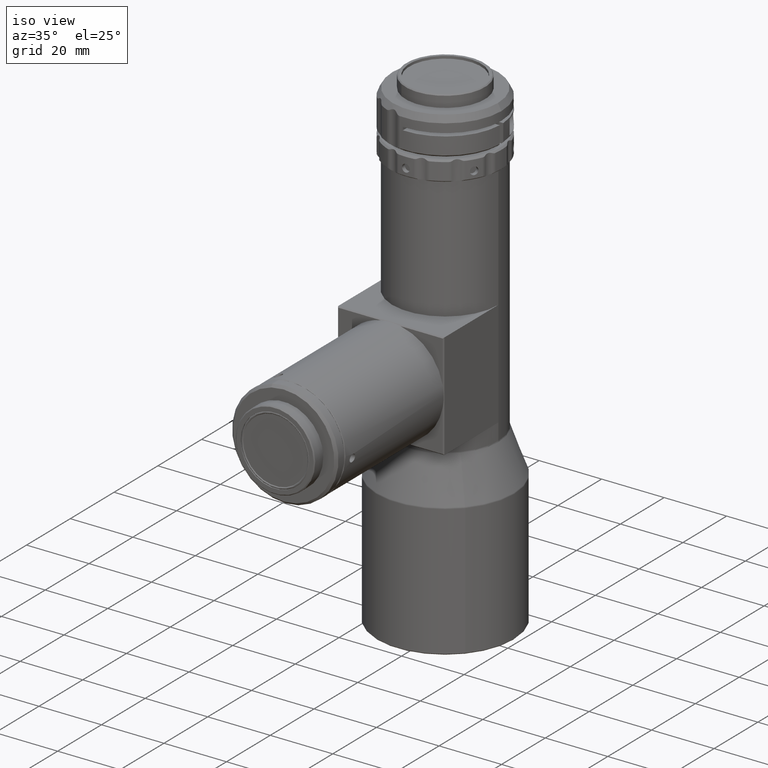
[diagram: clean part render]
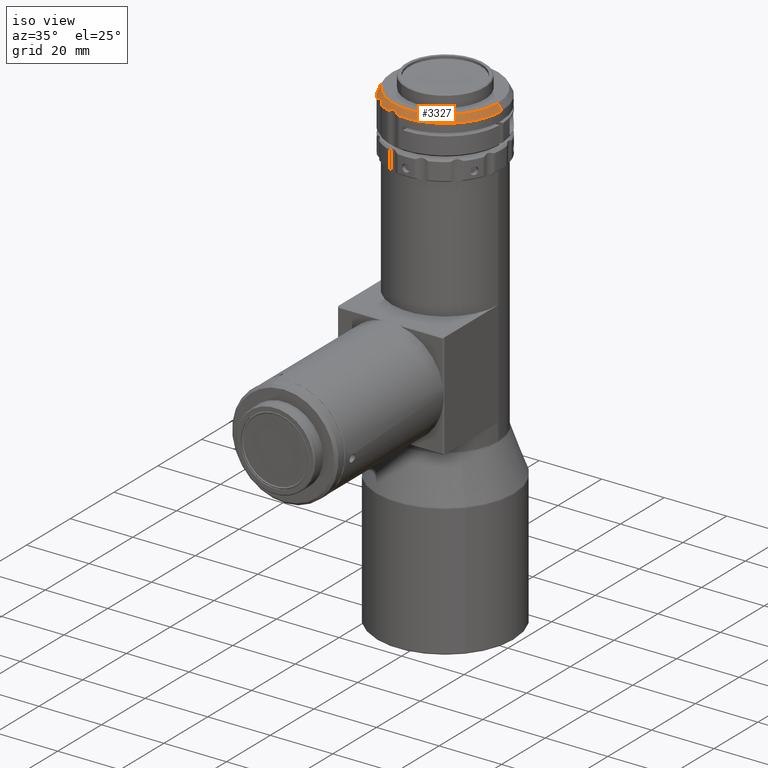
[diagram: same view with one face highlighted and labeled with its STEP entity id]
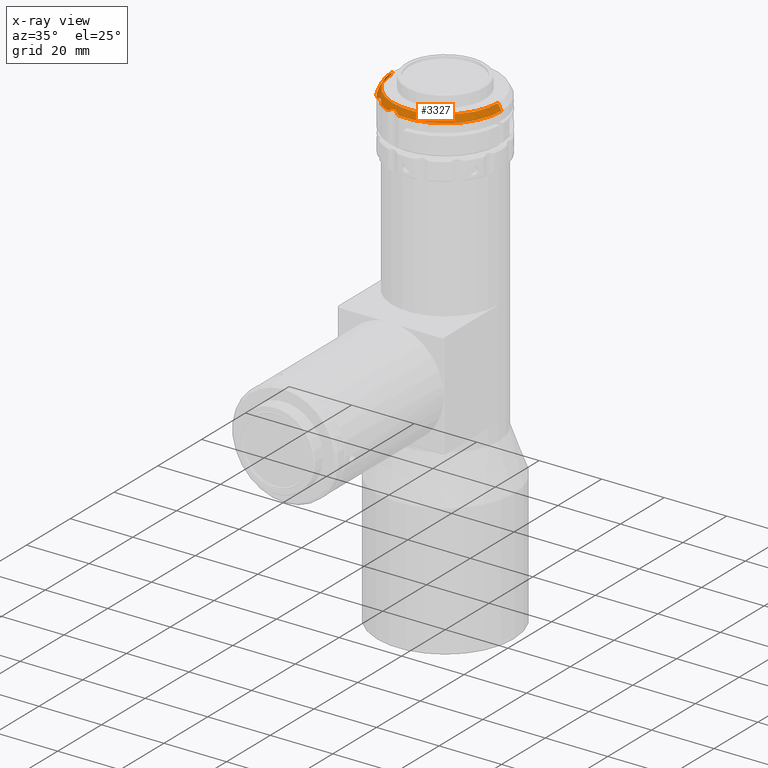
[diagram: x-ray of the same camera — body ghosted, the highlighted face saturated]
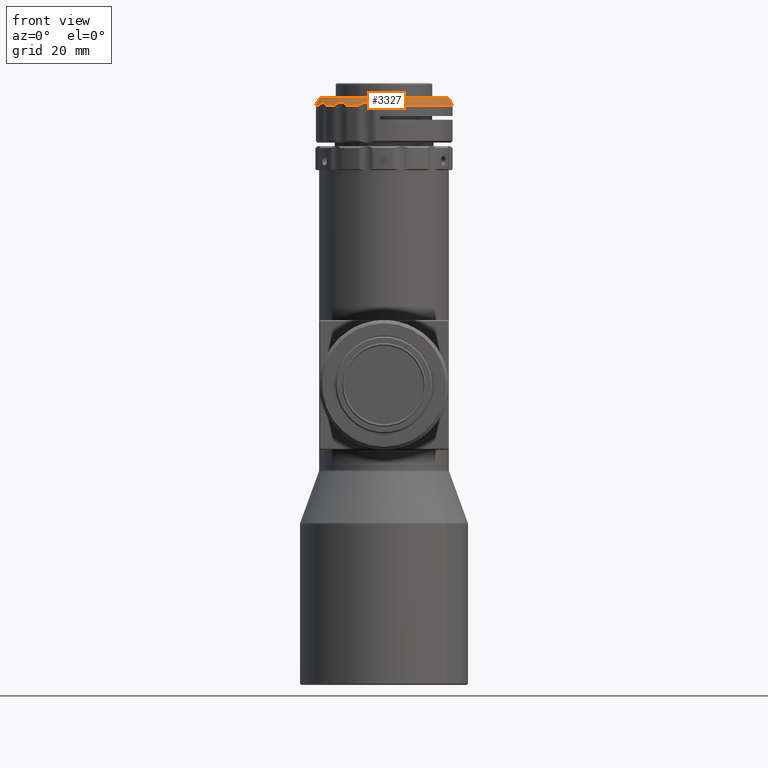
[diagram: same view with one face highlighted and labeled with its STEP entity id]
A machine part, iso view. The second image highlights one B-rep face of the part: STEP entity #3327.
The next image is the same camera in x-ray: the body ghosted, the highlighted face saturated — about 0% of this face is hidden behind the body in this view.
A second angle (front view) of the same face is appended — the face is thin or edge-on in the first view.
In plain terms, the highlighted conical surface has half-angle 30 deg.
Its self-contained STEP definition (entity closure, byte-faithful):
#64 = CARTESIAN_POINT ( 'NONE',  ( -4.313439645994937300, -16.96650867057923100, 96.99713797088765000 ) ) ;
#89 = CARTESIAN_POINT ( 'NONE',  ( -12.32222521436848000, -12.76093010696928200, 96.59305885247779600 ) ) ;
#130 = CARTESIAN_POINT ( 'NONE',  ( -13.27386189145130900, -12.16001671685843500, 96.14130850271084200 ) ) ;
#141 = CARTESIAN_POINT ( 'NONE',  ( -4.419495997256220200, -16.93318562859110800, 97.00722526655938800 ) ) ;
#166 = AXIS2_PLACEMENT_3D ( 'NONE', #6962, #1288, #3150 ) ;
#180 = CARTESIAN_POINT ( 'NONE',  ( -1.244827596036684800E-014, -5.510246075918334500E-014, 96.14130850271087100 ) ) ;
#204 = ORIENTED_EDGE ( 'NONE', *, *, #8533, .F. ) ;
#216 = CARTESIAN_POINT ( 'NONE',  ( -5.774726565399594100, -16.77292772665052600, 96.59305885247781000 ) ) ;
#250 = VERTEX_POINT ( 'NONE', #6624 ) ;
#330 = CARTESIAN_POINT ( 'NONE',  ( -11.16169711317837900, -13.47891827839881400, 97.00722526655933100 ) ) ;
#414 = CARTESIAN_POINT ( 'NONE',  ( -6.891159268654795300, -16.63049428013591300, 96.14130850271085600 ) ) ;
#421 = CARTESIAN_POINT ( 'NONE',  ( -17.49999999999878900, -3.277036072620960400E-013, 97.00733390649791900 ) ) ;
#460 = EDGE_CURVE ( 'NONE', #1816, #4734, #1260, .T. ) ;
#486 = CARTESIAN_POINT ( 'NONE',  ( -16.56073076540340600, -6.357732924902856000, 96.59305885247779600 ) ) ;
#516 = CARTESIAN_POINT ( 'NONE',  ( -17.58903900832814000, -0.8656980169986519000, 96.81836266962552900 ) ) ;
#763 = DIRECTION ( 'NONE',  ( 2.463942195970224100E-016, 2.161748815651533200E-017, -1.000000000000000000 ) ) ;
#894 = EDGE_LOOP ( 'NONE', ( #204, #10491, #3654, #8296, #8348, #2574, #6494, #6406, #8834, #2699, #8061, #6475, #4343, #5377, #944, #9292, #5608, #4321 ) ) ;
#944 = ORIENTED_EDGE ( 'NONE', *, *, #2488, .T. ) ;
#973 = EDGE_CURVE ( 'NONE', #7667, #9213, #5181, .T. ) ;
#989 = CARTESIAN_POINT ( 'NONE',  ( -12.70800556891448000, -12.58243642187167000, 96.34602818834159200 ) ) ;
#994 = CARTESIAN_POINT ( 'NONE',  ( -15.65993161157258300, -7.913623275787864800, 96.92834088505712500 ) ) ;
#1007 = CONICAL_SURFACE ( 'NONE', #166, 16.84529946162076200, 0.5235987755982927100 ) ;
#1008 = VERTEX_POINT ( 'NONE', #4546 ) ;
#1052 = CARTESIAN_POINT ( 'NONE',  ( 16.84529946162075100, -5.344689459046566900E-014, 98.14130850271087100 ) ) ;
#1055 = B_SPLINE_CURVE_WITH_KNOTS ( 'NONE', 3,
 ( #421, #1996, #3708, #9413, #9517, #516, #10299, #1408 ),
 .UNSPECIFIED., .F., .F.,
 ( 4, 2, 2, 4 ),
 ( 0.002074238456300346400, 0.002408963853086488700, 0.002743689249872630900, 0.003413140043444902000 ),
 .UNSPECIFIED. ) ;
#1073 = CARTESIAN_POINT ( 'NONE',  ( -15.57554933557925200, -8.217115512660594600, 96.81856360629605300 ) ) ;
#1119 = CARTESIAN_POINT ( 'NONE',  ( -3.385403957780243700, -17.41314478981953700, 96.59305885247781000 ) ) ;
#1121 = CIRCLE ( 'NONE', #7397, 18.00000000000000000 ) ;
#1217 = VERTEX_POINT ( 'NONE', #2162 ) ;
#1260 = B_SPLINE_CURVE_WITH_KNOTS ( 'NONE', 3,
 ( #8708, #1354, #10335, #2901, #3814, #486 ),
 .UNSPECIFIED., .F., .F.,
 ( 4, 2, 4 ),
 ( 8.673617379884028700E-019, 0.0007292985778901386000, 0.001458597155780276300 ),
 .UNSPECIFIED. ) ;
#1268 = CARTESIAN_POINT ( 'NONE',  ( -2.101199788604774600, -17.87693931992749400, 96.14130850271087100 ) ) ;
#1278 = CARTESIAN_POINT ( 'NONE',  ( -17.84496073229598400, -2.111414513679642700, 96.19493235281214500 ) ) ;
#1288 = DIRECTION ( 'NONE',  ( 2.463942195970224100E-016, 2.161748815651533200E-017, -1.000000000000000000 ) ) ;
#1354 = CARTESIAN_POINT ( 'NONE',  ( -17.16924952388791300, -5.410941401833371200, 96.14130850271084200 ) ) ;
#1358 = CARTESIAN_POINT ( 'NONE',  ( -10.31789010319863700, -14.52615262084732400, 96.45896438917157000 ) ) ;
#1408 = CARTESIAN_POINT ( 'NONE',  ( -17.69601328903655700, -1.236804391491865800, 96.59305885247781000 ) ) ;
#1419 = CARTESIAN_POINT ( 'NONE',  ( -9.564633539316941900, -15.24903501189525600, 96.14130850271084200 ) ) ;
#1543 = VERTEX_POINT ( 'NONE', #8682 ) ;
#1649 = CARTESIAN_POINT ( 'NONE',  ( -15.04515521559671900, -9.881462672024046200, 96.14130850271085600 ) ) ;
#1721 = CARTESIAN_POINT ( 'NONE',  ( -2.101199788604774600, -17.87693931992749400, 96.14130850271087100 ) ) ;
#1769 = CARTESIAN_POINT ( 'NONE',  ( -4.963640821624612600, -16.81127165673791500, 96.95815605164729300 ) ) ;
#1816 = VERTEX_POINT ( 'NONE', #7627 ) ;
#1856 = CARTESIAN_POINT ( 'NONE',  ( -15.51533852131233400, -8.599583827003169000, 96.59305885247779600 ) ) ;
#1899 = EDGE_CURVE ( 'NONE', #7184, #7954, #2798, .T. ) ;
#1973 = VERTEX_POINT ( 'NONE', #2309 ) ;
#1996 = CARTESIAN_POINT ( 'NONE',  ( -17.50000000000002500, -0.1117738368098899600, 97.00733390649524800 ) ) ;
#2071 = CARTESIAN_POINT ( 'NONE',  ( -17.75989041154169000, -1.433268542828687300, 96.45896438917158400 ) ) ;
#2162 = CARTESIAN_POINT ( 'NONE',  ( -16.84529946162077600, -5.478154267389183200E-014, 98.14130850271087100 ) ) ;
#2205 = CARTESIAN_POINT ( 'NONE',  ( -9.940438239394030300, -14.94798575561194700, 96.22602463068342600 ) ) ;
#2213 = VECTOR ( 'NONE', #2519, 1000.000000000000200 ) ;
#2244 = B_SPLINE_CURVE_WITH_KNOTS ( 'NONE', 3,
 ( #6660, #2557, #4164, #8272, #3383, #64, #141, #5843, #5091, #1769, #7468, #2596, #8312, #216 ),
 .UNSPECIFIED., .F., .F.,
 ( 4, 2, 2, 2, 2, 2, 4 ),
 ( 0.0007317229771825852500, 0.001402077243748160800, 0.001737254377030950700, 0.002072431510313740500, 0.002407608643596530600, 0.002742785776879319700, 0.003413140043444913700 ),
 .UNSPECIFIED. ) ;
#2309 = CARTESIAN_POINT ( 'NONE',  ( -7.118777264605412800, -16.53248348727253600, 96.14130850271087100 ) ) ;
#2488 = EDGE_CURVE ( 'NONE', #1973, #3466, #5202, .T. ) ;
#2519 = DIRECTION ( 'NONE',  ( -0.4999999999999944500, 2.953003798780912800E-017, -0.8660254037844418200 ) ) ;
#2557 = CARTESIAN_POINT ( 'NONE',  ( -3.543278589560237900, -17.31057634879011400, 96.71526191414297100 ) ) ;
#2574 = ORIENTED_EDGE ( 'NONE', *, *, #4046, .F. ) ;
#2592 = VECTOR ( 'NONE', #6643, 999.9999999999998900 ) ;
#2596 = CARTESIAN_POINT ( 'NONE',  ( -5.388022002322864900, -16.76565623604145500, 96.81865013659167100 ) ) ;
#2613 = CARTESIAN_POINT ( 'NONE',  ( -15.11302252678510000, -9.778130375502286100, 96.14130850271087100 ) ) ;
#2662 = CARTESIAN_POINT ( 'NONE',  ( -15.53824639421437900, -8.412715119580079600, 96.71526191414292800 ) ) ;
#2698 = CARTESIAN_POINT ( 'NONE',  ( -16.56073076540340600, -6.357732924902856000, 96.59305885247779600 ) ) ;
#2699 = ORIENTED_EDGE ( 'NONE', *, *, #7985, .F. ) ;
#2706 = CIRCLE ( 'NONE', #9692, 18.00000000000000000 ) ;
#2774 = CARTESIAN_POINT ( 'NONE',  ( -10.52706666361402600, -14.19125590461797000, 96.71526191414291400 ) ) ;
#2798 = B_SPLINE_CURVE_WITH_KNOTS ( 'NONE', 3,
 ( #4995, #7379, #4957, #6681, #4266, #7484, #2613, #6720 ),
 .UNSPECIFIED., .F., .F.,
 ( 4, 2, 2, 4 ),
 ( 0.0000000000000000000, 0.0007318732032975396800, 0.001097809804946308800, 0.001463746406595077800 ),
 .UNSPECIFIED. ) ;
#2866 = CARTESIAN_POINT ( 'NONE',  ( -6.659437698346716900, -16.69693283282908800, 96.18543408966790800 ) ) ;
#2879 = CARTESIAN_POINT ( 'NONE',  ( -11.33309653375336300, -13.33496486494910900, 97.00744080341534900 ) ) ;
#2901 = CARTESIAN_POINT ( 'NONE',  ( -16.83493181388655200, -6.032924885310087000, 96.34602818834160600 ) ) ;
#2905 = CARTESIAN_POINT ( 'NONE',  ( -11.69416046829606200, -13.07991376272284800, 96.92940801581797000 ) ) ;
#2932 = CARTESIAN_POINT ( 'NONE',  ( -5.981466206357800400, -16.78380262393155300, 96.45868019582954400 ) ) ;
#3150 = DIRECTION ( 'NONE',  ( -1.000000000000000000, 2.161748815651540900E-017, 0.0000000000000000000 ) ) ;
#3175 = DIRECTION ( 'NONE',  ( -1.000000000000000000, 2.161748815651542700E-017, 0.0000000000000000000 ) ) ;
#3212 = CARTESIAN_POINT ( 'NONE',  ( -1.244827596036684800E-014, -5.510246075918334500E-014, 96.14130850271087100 ) ) ;
#3222 = DIRECTION ( 'NONE',  ( -1.000000000000000000, 2.161748815651542700E-017, 0.0000000000000000000 ) ) ;
#3282 = CARTESIAN_POINT ( 'NONE',  ( -9.459454751163979900, -15.31400391180186600, 96.14130850271087100 ) ) ;
#3327 = ADVANCED_FACE ( 'NONE', ( #5360 ), #1007, .T. ) ;
#3383 = CARTESIAN_POINT ( 'NONE',  ( -4.105250825713350000, -17.04148078945282300, 96.95773685909510700 ) ) ;
#3466 = VERTEX_POINT ( 'NONE', #7466 ) ;
#3636 = CARTESIAN_POINT ( 'NONE',  ( -3.018664287863575400, -17.62639340291924100, 96.34645595384709800 ) ) ;
#3651 = EDGE_CURVE ( 'NONE', #8632, #8569, #5230, .T. ) ;
#3654 = ORIENTED_EDGE ( 'NONE', *, *, #7555, .T. ) ;
#3662 = EDGE_CURVE ( 'NONE', #1543, #5385, #1055, .T. ) ;
#3669 = CARTESIAN_POINT ( 'NONE',  ( -2.223981186884622200, -17.86250797664812900, 96.14130850271084200 ) ) ;
#3683 = CARTESIAN_POINT ( 'NONE',  ( -10.92266177980871500, -13.70987277414402600, 96.95773685909503600 ) ) ;
#3699 = CARTESIAN_POINT ( 'NONE',  ( 17.99999999999998600, -5.328721130753538800E-014, 96.14130850271087100 ) ) ;
#3708 = CARTESIAN_POINT ( 'NONE',  ( -17.50482674115274100, -0.2251893486777350700, 96.99705826033196800 ) ) ;
#3752 = CARTESIAN_POINT ( 'NONE',  ( -17.83958343000679700, -2.351661553874451600, 96.15253219409659400 ) ) ;
#3759 = CARTESIAN_POINT ( 'NONE',  ( -10.42733095171357000, -14.35093518388295500, 96.59305885247781000 ) ) ;
#3775 = AXIS2_PLACEMENT_3D ( 'NONE', #3212, #6534, #3175 ) ;
#3814 = CARTESIAN_POINT ( 'NONE',  ( -16.70195109967399500, -6.206351421003278200, 96.45868019582954400 ) ) ;
#3886 = CIRCLE ( 'NONE', #3775, 18.00000000000000000 ) ;
#4015 = EDGE_CURVE ( 'NONE', #7184, #4734, #4487, .T. ) ;
#4046 = EDGE_CURVE ( 'NONE', #1816, #250, #1121, .T. ) ;
#4100 = B_SPLINE_CURVE_WITH_KNOTS ( 'NONE', 3,
 ( #10226, #2071, #8643, #10269, #1278, #3752, #6874, #9382 ),
 .UNSPECIFIED., .F., .F.,
 ( 4, 2, 2, 4 ),
 ( 1.084202172485499400E-018, 0.0007318732032975381600, 0.001097809804946307500, 0.001463746406595076500 ),
 .UNSPECIFIED. ) ;
#4113 = VERTEX_POINT ( 'NONE', #3699 ) ;
#4164 = CARTESIAN_POINT ( 'NONE',  ( -3.717094450031366700, -17.21342305594726300, 96.81856360629603800 ) ) ;
#4266 = CARTESIAN_POINT ( 'NONE',  ( -15.28070453945773200, -9.455197700924047800, 96.19493235281217400 ) ) ;
#4287 = CARTESIAN_POINT ( 'NONE',  ( -16.43296731985544000, -6.494689282004974200, 96.71463256401284500 ) ) ;
#4318 = CARTESIAN_POINT ( 'NONE',  ( -15.81237002317989500, -7.498911564495844400, 97.00722526655940200 ) ) ;
#4321 = ORIENTED_EDGE ( 'NONE', *, *, #4372, .F. ) ;
#4343 = ORIENTED_EDGE ( 'NONE', *, *, #9331, .T. ) ;
#4372 = EDGE_CURVE ( 'NONE', #4113, #8569, #7758, .T. ) ;
#4487 = B_SPLINE_CURVE_WITH_KNOTS ( 'NONE', 3,
 ( #1856, #2662, #1073, #994, #5206, #6808, #4318, #9160, #10109, #7470, #5989, #6773, #4287, #2698 ),
 .UNSPECIFIED., .F., .F.,
 ( 4, 2, 2, 2, 2, 2, 4 ),
 ( 0.0007317229771825829800, 0.001402077243748163900, 0.001737254377030954800, 0.002072431510313745700, 0.002407608643596536600, 0.002742785776879327600, 0.003413140043444918100 ),
 .UNSPECIFIED. ) ;
#4545 = CARTESIAN_POINT ( 'NONE',  ( -12.32222521436848000, -12.76093010696928200, 96.59305885247779600 ) ) ;
#4546 = CARTESIAN_POINT ( 'NONE',  ( -13.43873270273928500, -11.97499325028316800, 96.14130850271085600 ) ) ;
#4575 = CARTESIAN_POINT ( 'NONE',  ( -10.64353857572585400, -14.02974736196296500, 96.81856360629602400 ) ) ;
#4677 = DIRECTION ( 'NONE',  ( -1.000000000000000000, 2.161748815651542700E-017, 0.0000000000000000000 ) ) ;
#4734 = VERTEX_POINT ( 'NONE', #8127 ) ;
#4799 = CARTESIAN_POINT ( 'NONE',  ( -1.294106439956089400E-014, -5.514569573549637300E-014, 98.14130850271087100 ) ) ;
#4898 = AXIS2_PLACEMENT_3D ( 'NONE', #4799, #8098, #10550 ) ;
#4942 = CARTESIAN_POINT ( 'NONE',  ( -16.84529946162077600, -5.478154267389183200E-014, 98.14130850271087100 ) ) ;
#4948 = EDGE_CURVE ( 'NONE', #8632, #3466, #2244, .T. ) ;
#4957 = CARTESIAN_POINT ( 'NONE',  ( -15.44296072057722700, -9.017596279497452000, 96.34645595384708400 ) ) ;
#4968 = CARTESIAN_POINT ( 'NONE',  ( -12.51419089104357600, -12.68341416336364200, 96.45868019582954400 ) ) ;
#4995 = CARTESIAN_POINT ( 'NONE',  ( -15.51533852131233400, -8.599583827003169000, 96.59305885247779600 ) ) ;
#5071 = CARTESIAN_POINT ( 'NONE',  ( 16.84529946162075100, -5.336705294900052500E-014, 98.14130850271087100 ) ) ;
#5091 = CARTESIAN_POINT ( 'NONE',  ( -4.746624652027235500, -16.85038378427485400, 96.99724761765044400 ) ) ;
#5181 = B_SPLINE_CURVE_WITH_KNOTS ( 'NONE', 3,
 ( #7668, #2774, #4575, #6921, #3683, #7780, #330, #2879, #9318, #7816, #2905, #6987, #6881, #6181 ),
 .UNSPECIFIED., .F., .F.,
 ( 4, 2, 2, 2, 2, 2, 4 ),
 ( 0.0007317229771825674700, 0.001402077243748156900, 0.001737254377030951500, 0.002072431510313746600, 0.002407608643596541000, 0.002742785776879335400, 0.003413140043444915500 ),
 .UNSPECIFIED. ) ;
#5202 = B_SPLINE_CURVE_WITH_KNOTS ( 'NONE', 3,
 ( #5450, #414, #2866, #8603, #2932, #9579 ),
 .UNSPECIFIED., .F., .F.,
 ( 4, 2, 4 ),
 ( 0.0000000000000000000, 0.0007292985778901314400, 0.001458597155780262900 ),
 .UNSPECIFIED. ) ;
#5206 = CARTESIAN_POINT ( 'NONE',  ( -15.69333602670310800, -7.809248119524149000, 96.95773685909510700 ) ) ;
#5230 = B_SPLINE_CURVE_WITH_KNOTS ( 'NONE', 3,
 ( #8532, #7739, #3636, #10101, #8607, #5282, #3669, #1268 ),
 .UNSPECIFIED., .F., .F.,
 ( 4, 2, 2, 4 ),
 ( 0.0000000000000000000, 0.0007318732032975350200, 0.001097809804946303100, 0.001463746406595071300 ),
 .UNSPECIFIED. ) ;
#5282 = CARTESIAN_POINT ( 'NONE',  ( -2.345693318802711600, -17.84036916306021300, 96.15253219409662200 ) ) ;
#5360 = FACE_OUTER_BOUND ( 'NONE', #894, .T. ) ;
#5377 = ORIENTED_EDGE ( 'NONE', *, *, #8389, .F. ) ;
#5385 = VERTEX_POINT ( 'NONE', #9906 ) ;
#5410 = CARTESIAN_POINT ( 'NONE',  ( -1.244827596036684800E-014, -5.510246075918334500E-014, 96.14130850271087100 ) ) ;
#5450 = CARTESIAN_POINT ( 'NONE',  ( -7.118777264605412800, -16.53248348727253600, 96.14130850271087100 ) ) ;
#5589 = CARTESIAN_POINT ( 'NONE',  ( -1.244827596036684800E-014, -5.510246075918334500E-014, 96.14130850271087100 ) ) ;
#5608 = ORIENTED_EDGE ( 'NONE', *, *, #3651, .T. ) ;
#5843 = CARTESIAN_POINT ( 'NONE',  ( -4.635673968180650000, -16.87515605419789500, 97.00744080341532100 ) ) ;
#5889 = DIRECTION ( 'NONE',  ( 2.463942195970224100E-016, 2.161748815651533200E-017, -1.000000000000000000 ) ) ;
#5986 = VERTEX_POINT ( 'NONE', #5071 ) ;
#5989 = CARTESIAN_POINT ( 'NONE',  ( -16.12631911339303800, -6.912261927295474200, 96.92940801581799800 ) ) ;
#6181 = CARTESIAN_POINT ( 'NONE',  ( -12.32222521436848000, -12.76093010696928200, 96.59305885247779600 ) ) ;
#6196 = B_SPLINE_CURVE_WITH_KNOTS ( 'NONE', 3,
 ( #3759, #1358, #10364, #2205, #9556, #6315, #1419, #8647 ),
 .UNSPECIFIED., .F., .F.,
 ( 4, 2, 2, 4 ),
 ( 0.0000000000000000000, 0.0007318732032975289500, 0.001097809804946295100, 0.001463746406595061100 ),
 .UNSPECIFIED. ) ;
#6290 = DIRECTION ( 'NONE',  ( 2.463942195970224100E-016, 2.161748815651533200E-017, -1.000000000000000000 ) ) ;
#6307 = LINE ( 'NONE', #4942, #2213 ) ;
#6315 = CARTESIAN_POINT ( 'NONE',  ( -9.665585925335628700, -15.17753266312082300, 96.15253219409660800 ) ) ;
#6406 = ORIENTED_EDGE ( 'NONE', *, *, #4015, .F. ) ;
#6475 = ORIENTED_EDGE ( 'NONE', *, *, #973, .F. ) ;
#6494 = ORIENTED_EDGE ( 'NONE', *, *, #460, .T. ) ;
#6534 = DIRECTION ( 'NONE',  ( 2.463942195970224100E-016, 2.161748815651533200E-017, -1.000000000000000000 ) ) ;
#6614 = EDGE_CURVE ( 'NONE', #5385, #250, #4100, .T. ) ;
#6624 = CARTESIAN_POINT ( 'NONE',  ( -17.81162790697675600, -2.597289222132860500, 96.14130850271085600 ) ) ;
#6643 = DIRECTION ( 'NONE',  ( 0.4999999999999949500, 6.914488978866105200E-017, -0.8660254037844415900 ) ) ;
#6660 = CARTESIAN_POINT ( 'NONE',  ( -3.385403957780243700, -17.41314478981953700, 96.59305885247781000 ) ) ;
#6681 = CARTESIAN_POINT ( 'NONE',  ( -15.32638833948114500, -9.346465161150545600, 96.22602463068345500 ) ) ;
#6720 = CARTESIAN_POINT ( 'NONE',  ( -15.04515521559671900, -9.881462672024046200, 96.14130850271085600 ) ) ;
#6773 = CARTESIAN_POINT ( 'NONE',  ( -16.30659157867417600, -6.649291782509086700, 96.81865013659168500 ) ) ;
#6808 = CARTESIAN_POINT ( 'NONE',  ( -15.76972524580339700, -7.601575081544051900, 96.99713797088762100 ) ) ;
#6874 = CARTESIAN_POINT ( 'NONE',  ( -17.82946646405431300, -2.474956392059358000, 96.14130850271082800 ) ) ;
#6881 = CARTESIAN_POINT ( 'NONE',  ( -12.14855195119689000, -12.83105955462362100, 96.71463256401281700 ) ) ;
#6921 = CARTESIAN_POINT ( 'NONE',  ( -10.84827625114544200, -13.79035147518207100, 96.92834088505705400 ) ) ;
#6962 = CARTESIAN_POINT ( 'NONE',  ( -1.294106439956089400E-014, -5.514569573549637300E-014, 98.14130850271087100 ) ) ;
#6987 = CARTESIAN_POINT ( 'NONE',  ( -11.96867879284798000, -12.91776830866162000, 96.81865013659168500 ) ) ;
#7184 = VERTEX_POINT ( 'NONE', #10246 ) ;
#7379 = CARTESIAN_POINT ( 'NONE',  ( -15.49020151671989800, -8.804636455711392500, 96.45896438917158400 ) ) ;
#7397 = AXIS2_PLACEMENT_3D ( 'NONE', #180, #5889, #7506 ) ;
#7407 = EDGE_CURVE ( 'NONE', #5986, #1217, #8215, .T. ) ;
#7466 = CARTESIAN_POINT ( 'NONE',  ( -5.774726565399594100, -16.77292772665052600, 96.59305885247781000 ) ) ;
#7468 = CARTESIAN_POINT ( 'NONE',  ( -5.070698277152702700, -16.79659346655165200, 96.92940801581802600 ) ) ;
#7470 = CARTESIAN_POINT ( 'NONE',  ( -16.06874805348224900, -7.003707654981576900, 96.95815605164726500 ) ) ;
#7484 = CARTESIAN_POINT ( 'NONE',  ( -15.17429826200431700, -9.670662918118800600, 96.15253219409663600 ) ) ;
#7506 = DIRECTION ( 'NONE',  ( -1.000000000000000000, 2.161748815651542700E-017, 0.0000000000000000000 ) ) ;
#7546 = CARTESIAN_POINT ( 'NONE',  ( -13.09192897350850000, -12.31816026177512500, 96.18543408966790800 ) ) ;
#7555 = EDGE_CURVE ( 'NONE', #1217, #1543, #6307, .T. ) ;
#7627 = CARTESIAN_POINT ( 'NONE',  ( -17.24047892818797200, -5.173575777613386600, 96.14130850271085600 ) ) ;
#7667 = VERTEX_POINT ( 'NONE', #9453 ) ;
#7668 = CARTESIAN_POINT ( 'NONE',  ( -10.42733095171357000, -14.35093518388295500, 96.59305885247781000 ) ) ;
#7739 = CARTESIAN_POINT ( 'NONE',  ( -3.212166775914719900, -17.52569401620215200, 96.45896438917158400 ) ) ;
#7758 = CIRCLE ( 'NONE', #9801, 18.00000000000000000 ) ;
#7780 = CARTESIAN_POINT ( 'NONE',  ( -11.07966034224651800, -13.55394056165699900, 96.99713797088757900 ) ) ;
#7816 = CARTESIAN_POINT ( 'NONE',  ( -11.60333673391263800, -13.13846115654993200, 96.95815605164722200 ) ) ;
#7846 = B_SPLINE_CURVE_WITH_KNOTS ( 'NONE', 3,
 ( #9870, #130, #7546, #989, #4968, #89 ),
 .UNSPECIFIED., .F., .F.,
 ( 4, 2, 4 ),
 ( 0.0000000000000000000, 0.0007292985778901337200, 0.001458597155780267400 ),
 .UNSPECIFIED. ) ;
#7954 = VERTEX_POINT ( 'NONE', #1649 ) ;
#7985 = EDGE_CURVE ( 'NONE', #1008, #7954, #2706, .T. ) ;
#8061 = ORIENTED_EDGE ( 'NONE', *, *, #9794, .T. ) ;
#8098 = DIRECTION ( 'NONE',  ( 2.463942195970224100E-016, 2.161748815651533200E-017, -1.000000000000000000 ) ) ;
#8127 = CARTESIAN_POINT ( 'NONE',  ( -16.56073076540340600, -6.357732924902856000, 96.59305885247779600 ) ) ;
#8215 = CIRCLE ( 'NONE', #4898, 16.84529946162076200 ) ;
#8272 = CARTESIAN_POINT ( 'NONE',  ( -4.003822873103135100, -17.08298258007185700, 96.92834088505709600 ) ) ;
#8296 = ORIENTED_EDGE ( 'NONE', *, *, #3662, .T. ) ;
#8312 = CARTESIAN_POINT ( 'NONE',  ( -5.587687149322612800, -16.76308909856780000, 96.71463256401277400 ) ) ;
#8348 = ORIENTED_EDGE ( 'NONE', *, *, #6614, .T. ) ;
#8389 = EDGE_CURVE ( 'NONE', #1973, #8448, #3886, .T. ) ;
#8448 = VERTEX_POINT ( 'NONE', #3282 ) ;
#8532 = CARTESIAN_POINT ( 'NONE',  ( -3.385403957780243700, -17.41314478981953700, 96.59305885247781000 ) ) ;
#8533 = EDGE_CURVE ( 'NONE', #5986, #4113, #9105, .T. ) ;
#8569 = VERTEX_POINT ( 'NONE', #1721 ) ;
#8603 = CARTESIAN_POINT ( 'NONE',  ( -6.199796995738029900, -16.77419533276162900, 96.34602818834159200 ) ) ;
#8607 = CARTESIAN_POINT ( 'NONE',  ( -2.579145887860099200, -17.78338272868518300, 96.19493235281216000 ) ) ;
#8632 = VERTEX_POINT ( 'NONE', #1119 ) ;
#8643 = CARTESIAN_POINT ( 'NONE',  ( -17.80707642068085400, -1.646240512601006900, 96.34645595384709800 ) ) ;
#8647 = CARTESIAN_POINT ( 'NONE',  ( -9.459454751163979900, -15.31400391180186600, 96.14130850271087100 ) ) ;
#8682 = CARTESIAN_POINT ( 'NONE',  ( -17.49999999999878900, -3.277036072620960400E-013, 97.00733390649791900 ) ) ;
#8708 = CARTESIAN_POINT ( 'NONE',  ( -17.24047892818797200, -5.173575777613386600, 96.14130850271085600 ) ) ;
#8834 = ORIENTED_EDGE ( 'NONE', *, *, #1899, .T. ) ;
#9105 = LINE ( 'NONE', #1052, #2592 ) ;
#9160 = CARTESIAN_POINT ( 'NONE',  ( -15.90687331137681100, -7.296008939729108400, 97.00744080341534900 ) ) ;
#9213 = VERTEX_POINT ( 'NONE', #4545 ) ;
#9292 = ORIENTED_EDGE ( 'NONE', *, *, #4948, .F. ) ;
#9318 = CARTESIAN_POINT ( 'NONE',  ( -11.42318278884631000, -13.26562377866910000, 96.99724761765037300 ) ) ;
#9331 = EDGE_CURVE ( 'NONE', #7667, #8448, #6196, .T. ) ;
#9382 = CARTESIAN_POINT ( 'NONE',  ( -17.81162790697675600, -2.597289222132860500, 96.14130850271085600 ) ) ;
#9413 = CARTESIAN_POINT ( 'NONE',  ( -17.52326071795669900, -0.4445945272042249300, 96.95787033118621400 ) ) ;
#9453 = CARTESIAN_POINT ( 'NONE',  ( -10.42733095171357000, -14.35093518388295500, 96.59305885247781000 ) ) ;
#9517 = CARTESIAN_POINT ( 'NONE',  ( -17.53680010954452600, -0.5516419690771232600, 96.92910365799883700 ) ) ;
#9556 = CARTESIAN_POINT ( 'NONE',  ( -9.853082298737666300, -15.02722409495733800, 96.19493235281214500 ) ) ;
#9579 = CARTESIAN_POINT ( 'NONE',  ( -5.774726565399594100, -16.77292772665052600, 96.59305885247781000 ) ) ;
#9692 = AXIS2_PLACEMENT_3D ( 'NONE', #5589, #763, #3222 ) ;
#9794 = EDGE_CURVE ( 'NONE', #1008, #9213, #7846, .T. ) ;
#9801 = AXIS2_PLACEMENT_3D ( 'NONE', #5410, #6290, #4677 ) ;
#9870 = CARTESIAN_POINT ( 'NONE',  ( -13.43873270273928500, -11.97499325028316800, 96.14130850271085600 ) ) ;
#9906 = CARTESIAN_POINT ( 'NONE',  ( -17.69601328903655700, -1.236804391491865800, 96.59305885247781000 ) ) ;
#10101 = CARTESIAN_POINT ( 'NONE',  ( -2.691804826358249200, -17.74848662049751300, 96.22602463068348300 ) ) ;
#10109 = CARTESIAN_POINT ( 'NONE',  ( -15.95921437652165800, -7.195092476737838400, 96.99724761765044400 ) ) ;
#10226 = CARTESIAN_POINT ( 'NONE',  ( -17.69601328903655700, -1.236804391491865800, 96.59305885247781000 ) ) ;
#10246 = CARTESIAN_POINT ( 'NONE',  ( -15.51533852131233400, -8.599583827003169000, 96.59305885247779600 ) ) ;
#10269 = CARTESIAN_POINT ( 'NONE',  ( -17.84041195904490400, -1.993562558023041800, 96.22602463068346900 ) ) ;
#10299 = CARTESIAN_POINT ( 'NONE',  ( -17.63817859317860100, -1.058924675030877400, 96.71446871249348500 ) ) ;
#10335 = CARTESIAN_POINT ( 'NONE',  ( -17.07119665369623000, -5.631156301595350300, 96.18543408966790800 ) ) ;
#10364 = CARTESIAN_POINT ( 'NONE',  ( -10.18507469123965400, -14.69919494432151700, 96.34645595384708400 ) ) ;
#10491 = ORIENTED_EDGE ( 'NONE', *, *, #7407, .T. ) ;
#10550 = DIRECTION ( 'NONE',  ( -1.000000000000000000, 2.161748815651540900E-017, 0.0000000000000000000 ) ) ;